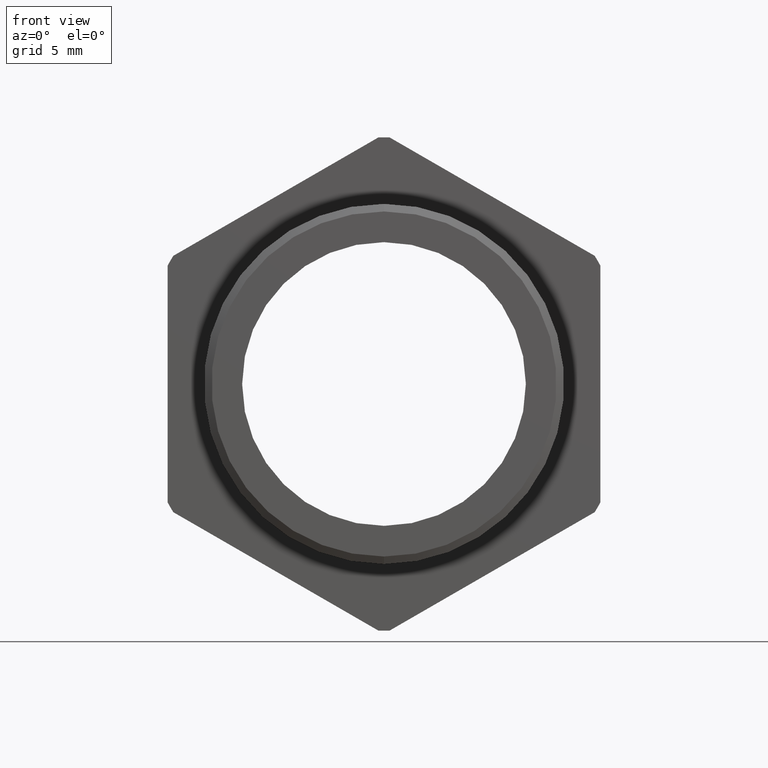
[diagram: clean part render]
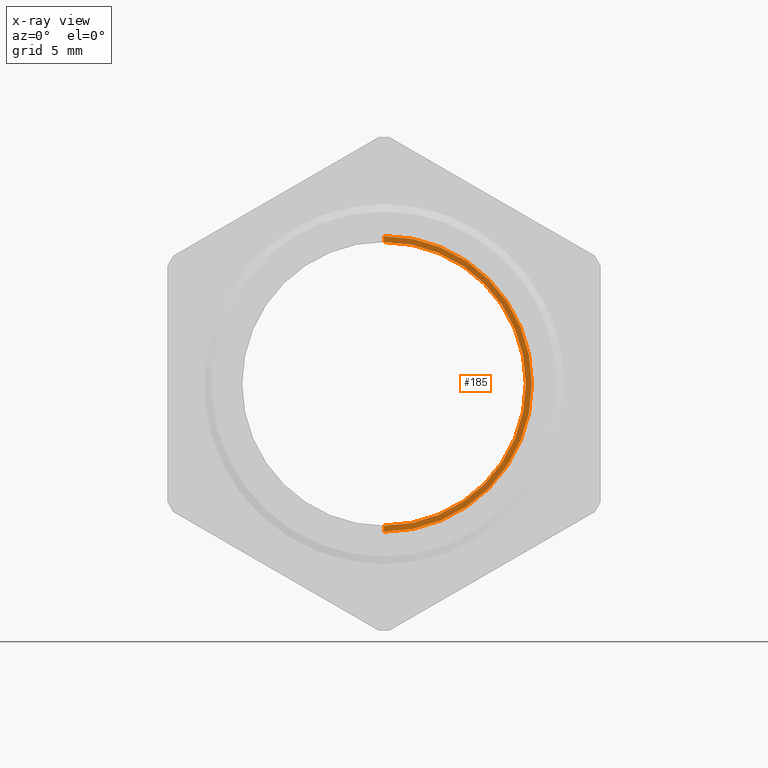
[diagram: x-ray — body ghosted, one internal face saturated and labeled with its STEP entity id]
A machine part, front view, then the same camera in x-ray: the body is ghosted and one INTERNAL B-rep face — a face not visible from any outside direction — is saturated and labeled: STEP entity #185.
In plain terms, the highlighted conical surface has half-angle 88.312 deg.
Its self-contained STEP definition (entity closure, byte-faithful):
#161 = ORIENTED_EDGE ( 'NONE', *, *, #1702, .T. ) ;
#165 = ORIENTED_EDGE ( 'NONE', *, *, #1857, .F. ) ;
#169 = ORIENTED_EDGE ( 'NONE', *, *, #1860, .T. ) ;
#177 = EDGE_CURVE ( 'NONE', #822, #834, #2821, .T. ) ;
#180 = EDGE_LOOP ( 'NONE', ( #165, #161, #169, #182 ) ) ;
#182 = ORIENTED_EDGE ( 'NONE', *, *, #177, .F. ) ;
#185 = ADVANCED_FACE ( 'NONE', ( #2815 ), #2871, .F. ) ;
#822 = VERTEX_POINT ( 'NONE', #3975 ) ;
#834 = VERTEX_POINT ( 'NONE', #4032 ) ;
#1702 = EDGE_CURVE ( 'NONE', #1855, #1854, #5506, .T. ) ;
#1854 = VERTEX_POINT ( 'NONE', #5835 ) ;
#1855 = VERTEX_POINT ( 'NONE', #5834 ) ;
#1857 = EDGE_CURVE ( 'NONE', #1855, #822, #5833, .T. ) ;
#1860 = EDGE_CURVE ( 'NONE', #1854, #834, #5829, .T. ) ;
#2809 = CARTESIAN_POINT ( 'NONE',  ( 0.0000000000000000000, 0.3747992980933291300, 0.0000000000000000000 ) ) ;
#2815 = FACE_OUTER_BOUND ( 'NONE', #180, .T. ) ;
#2817 = DIRECTION ( 'NONE',  ( 0.0000000000000000000, 0.0000000000000000000, 1.000000000000000000 ) ) ;
#2818 = DIRECTION ( 'NONE',  ( -0.0000000000000000000, 1.000000000000000000, -0.0000000000000000000 ) ) ;
#2819 = CARTESIAN_POINT ( 'NONE',  ( 0.0000000000000000000, 0.3738999999999996800, 0.0000000000000000000 ) ) ;
#2820 = AXIS2_PLACEMENT_3D ( 'NONE', #2819, #2818, #2817 ) ;
#2821 = CIRCLE ( 'NONE', #2820, 0.2699131668257122000 ) ;
#2868 = DIRECTION ( 'NONE',  ( 0.0000000000000000000, 0.0000000000000000000, -1.000000000000000000 ) ) ;
#2869 = DIRECTION ( 'NONE',  ( 0.0000000000000000000, -1.000000000000000000, 0.0000000000000000000 ) ) ;
#2870 = AXIS2_PLACEMENT_3D ( 'NONE', #2809, #2869, #2868 ) ;
#2871 = CONICAL_SURFACE ( 'NONE', #2870, 0.2393976470508425700, 1.541334666264296200 ) ;
#3975 = CARTESIAN_POINT ( 'NONE',  ( 3.305482958008340700E-017, 0.3738999999999996800, 0.2699131668257122600 ) ) ;
#4032 = CARTESIAN_POINT ( 'NONE',  ( 0.0000000000000000000, 0.3738999999999996800, -0.2699131668257122600 ) ) ;
#5502 = DIRECTION ( 'NONE',  ( 0.0000000000000000000, 0.0000000000000000000, -1.000000000000000000 ) ) ;
#5503 = DIRECTION ( 'NONE',  ( -0.0000000000000000000, 1.000000000000000000, -0.0000000000000000000 ) ) ;
#5504 = CARTESIAN_POINT ( 'NONE',  ( 0.0000000000000000000, 0.3742219653570459900, 0.0000000000000000000 ) ) ;
#5505 = AXIS2_PLACEMENT_3D ( 'NONE', #5504, #5503, #5502 ) ;
#5506 = CIRCLE ( 'NONE', #5505, 0.2589880461203001900 ) ;
#5826 = DIRECTION ( 'NONE',  ( 0.0000000000000000000, -0.02945739864719126200, -0.9995660366703845700 ) ) ;
#5827 = VECTOR ( 'NONE', #5826, 39.37007874015747400 ) ;
#5828 = CARTESIAN_POINT ( 'NONE',  ( 0.0000000000000000000, 0.3747992980933291300, -0.2393976470508425700 ) ) ;
#5829 = LINE ( 'NONE', #5828, #5827 ) ;
#5830 = DIRECTION ( 'NONE',  ( 1.224115347344792500E-016, -0.02945739864719126200, 0.9995660366703845700 ) ) ;
#5831 = VECTOR ( 'NONE', #5830, 39.37007874015747400 ) ;
#5832 = CARTESIAN_POINT ( 'NONE',  ( 2.931775621842221100E-017, 0.3747992980933291300, 0.2393976470508425700 ) ) ;
#5833 = LINE ( 'NONE', #5832, #5831 ) ;
#5834 = CARTESIAN_POINT ( 'NONE',  ( 3.171688816986526800E-017, 0.3742219653570459900, 0.2589880461203001900 ) ) ;
#5835 = CARTESIAN_POINT ( 'NONE',  ( 0.0000000000000000000, 0.3742219653570459900, -0.2589880461203001900 ) ) ;